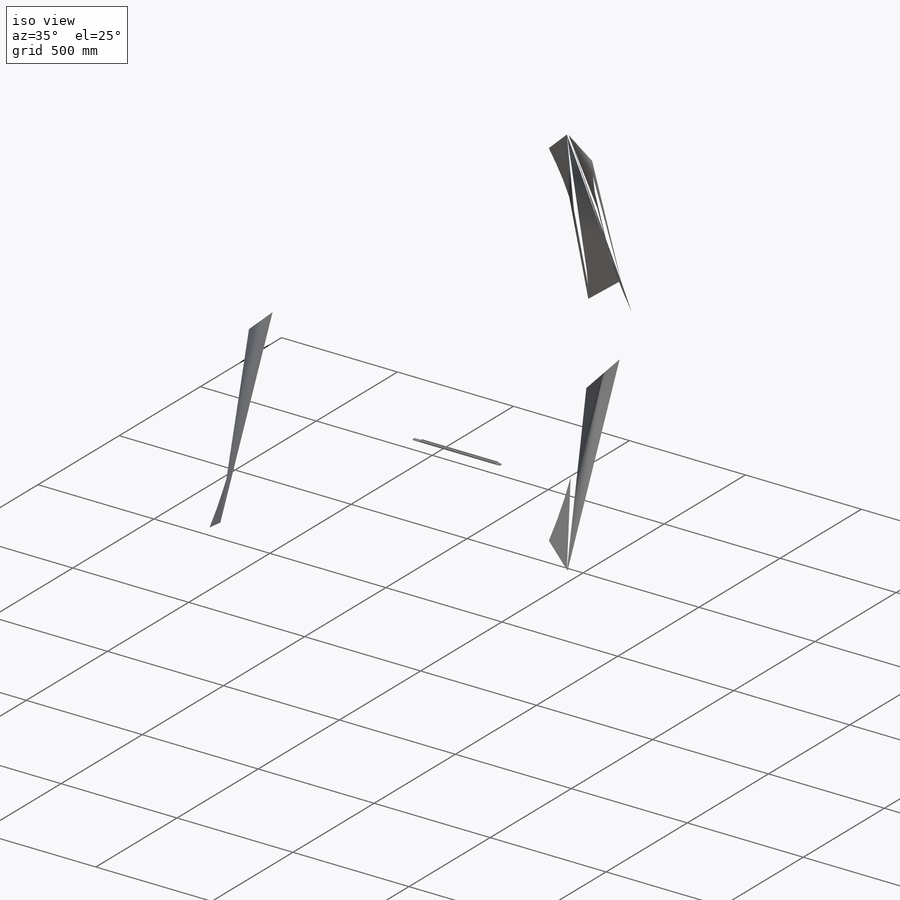
[diagram: iso view]
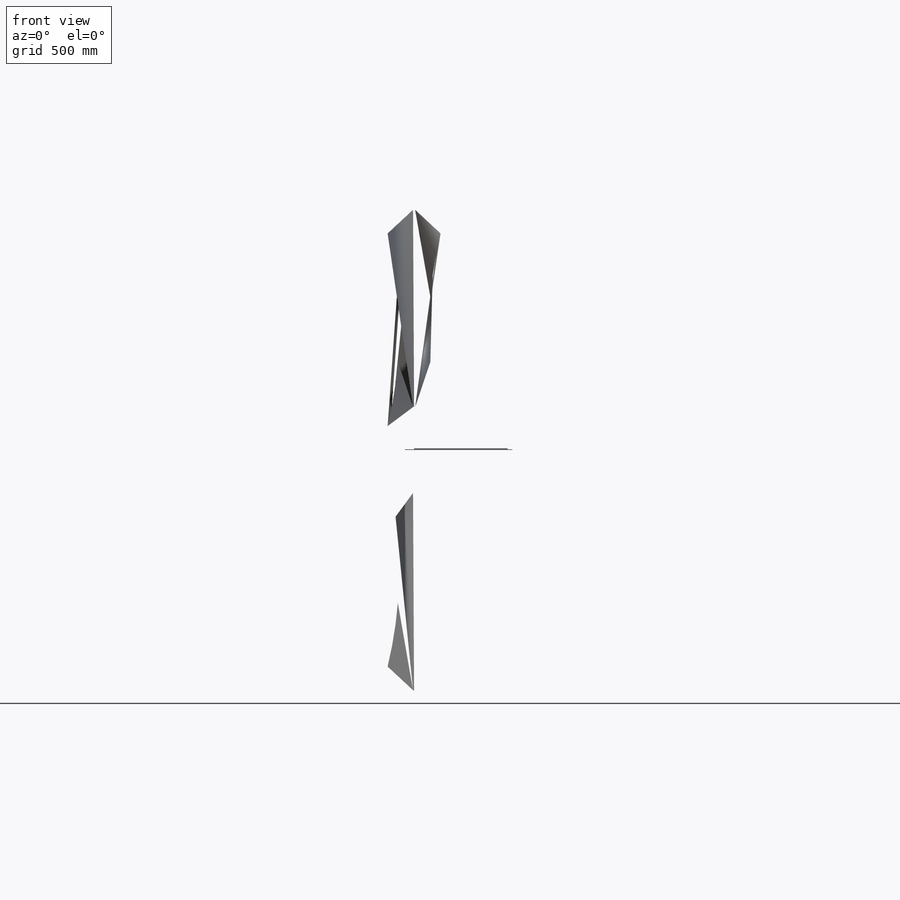
[diagram: front view]
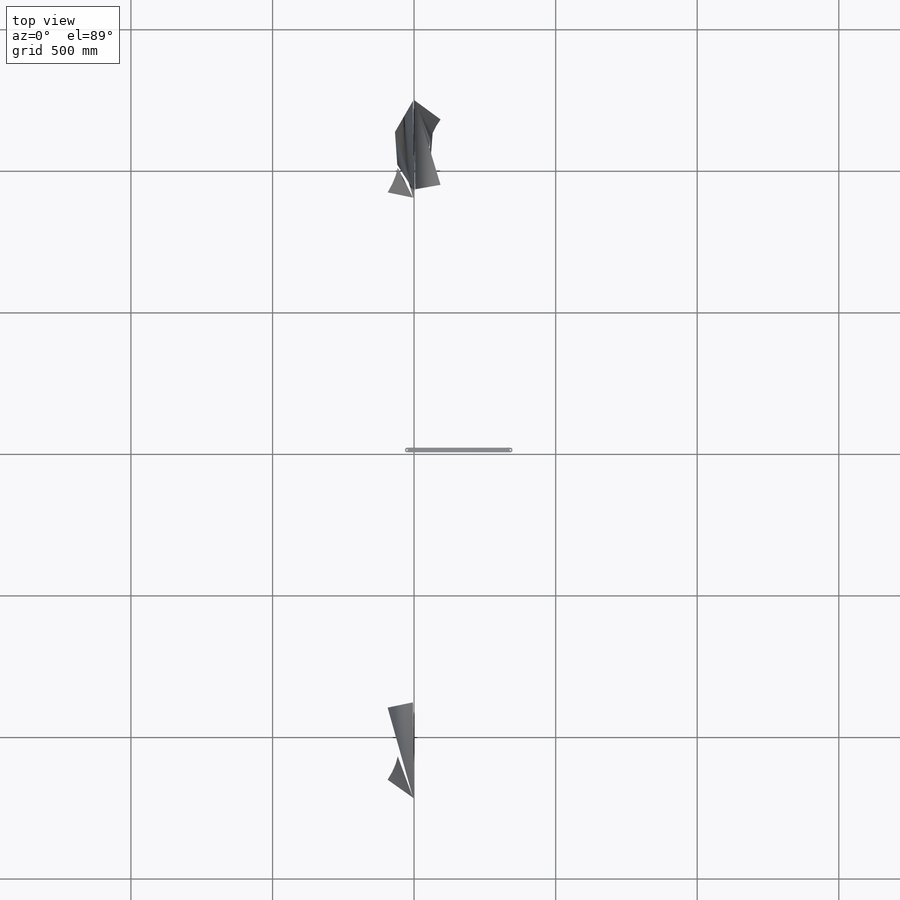
[diagram: top view]
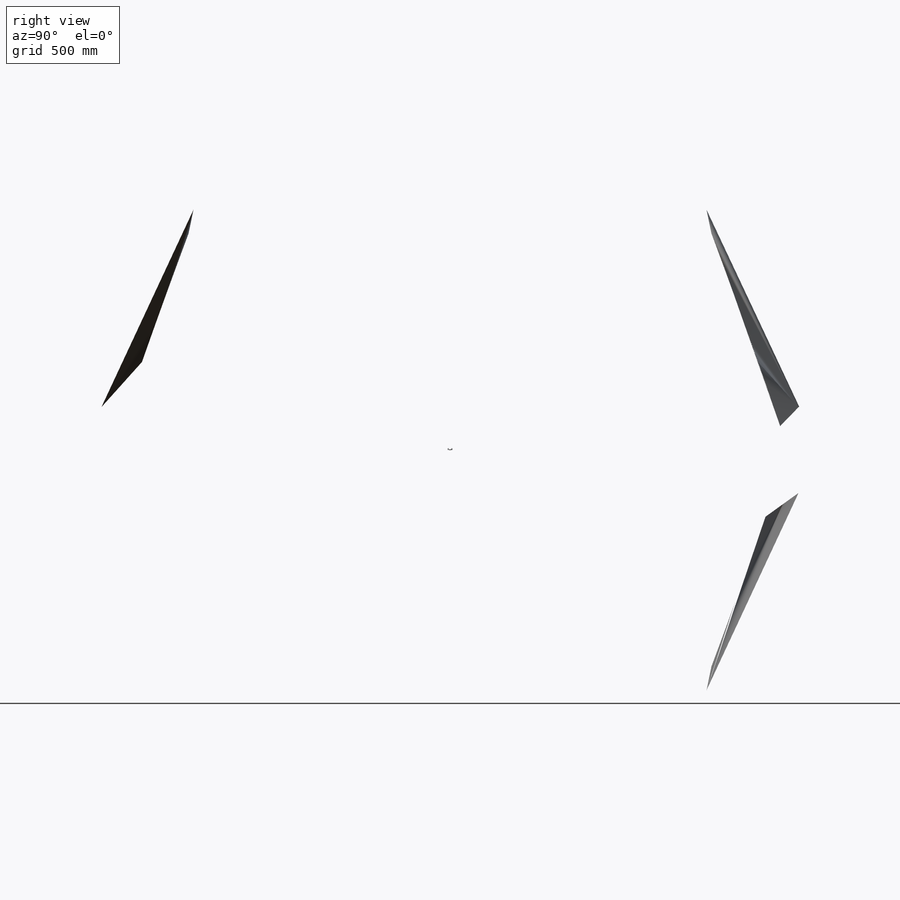
[diagram: right view]
SOLIDWORKS PART (.sldprt)
format: sldprt  version: not decoded by parser v0  size: 416,768 bytes
history: native  units: mm
features: sketch x4, extrude x3, material x1, fillet x1 (+13 scaffold rows collapsed)
feature tree (22):
  scaffold x13  (default folders/planes/origin — collapsed)
  material  "ABS"
  sketch  "Sketch1"  dims[c1.D7=0.5mm c1.D1=10.7mm c1.D2=1.75mm c1.D3=3.5mm c1.D4=2.0mm c2.D4=45.0deg c2.D1=5.35mm c2.D5=5.35mm c3.D5=~1.138235deg c4.D5=2.5mm c4.D6=2.5mm]
  extrude  "Boss-Extrude1"  Depth=330.2mm
  sketch  "Sketch2"  dims[D1=7.0mm D2=5.4mm D3=10.0mm]
  extrude  "Boss-Extrude2"  [1 undecoded]
  sketch  "Sketch3"  dims[D1=7.0mm D2=5.4mm D3=25.0mm]
  extrude  "Boss-Extrude3"  [1 undecoded]
  sketch  "Sketch4"  dims[D5=0.5mm D6=0.5mm D1=2.0mm D2=2.0mm D3=3.0mm D4=2.0mm]
  fillet  "Fillet1"  Radius=1mm
decode coverage: 6 of 8 modeling features carry decoded parameters
note: ~ marks probable driven/reference dimensions
note: 2 parameter values undecoded
note: suppression state not decoded; provenance and decode notes live in map.json
